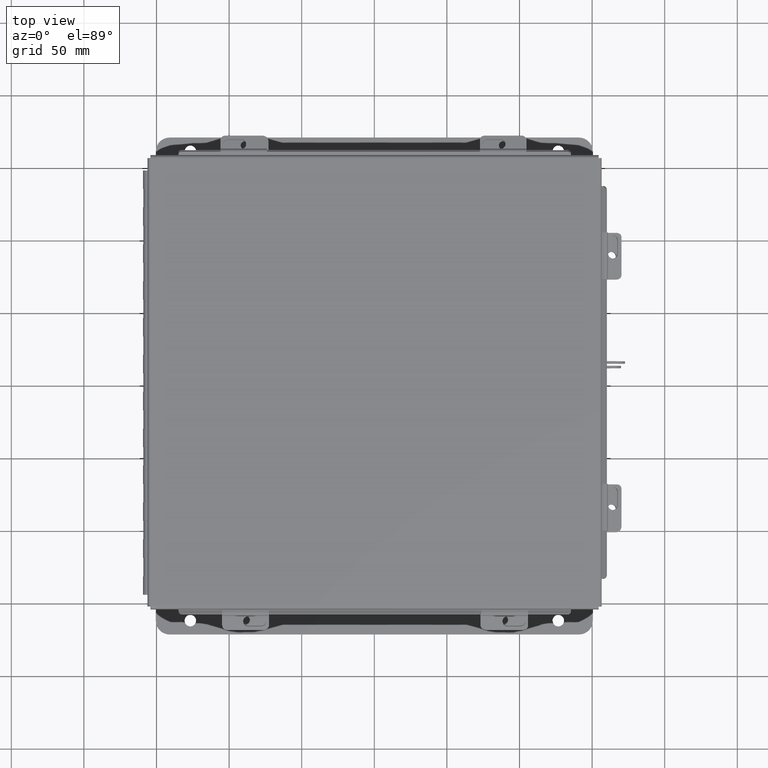
[diagram: clean part render]
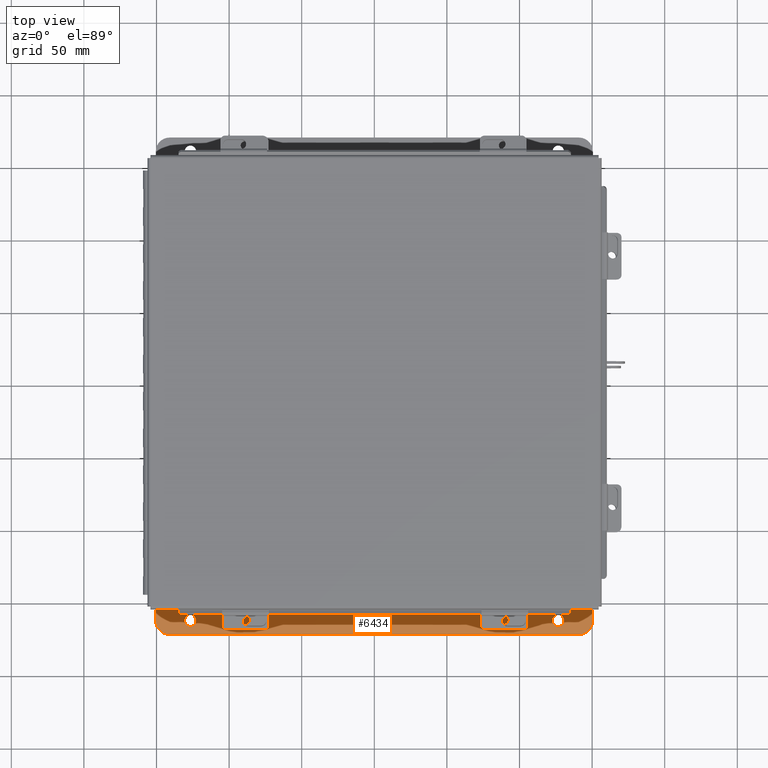
[diagram: same view with one face highlighted and labeled with its STEP entity id]
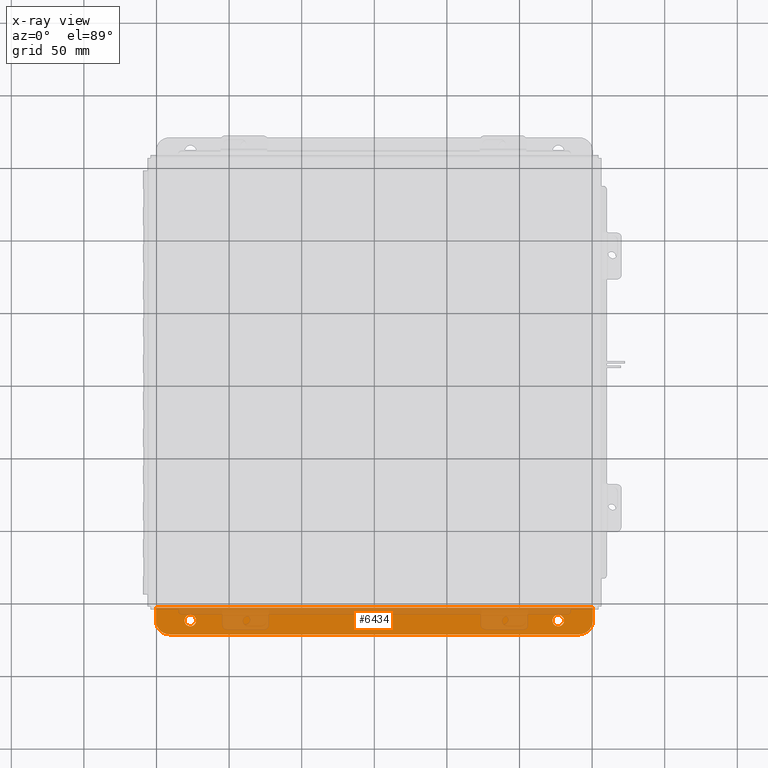
[diagram: x-ray of the same camera — body ghosted, the highlighted face saturated]
A machine part, top view. The second image highlights one B-rep face of the part: STEP entity #6434.
The next image is the same camera in x-ray: the body ghosted, the highlighted face saturated — about 37% of this face is hidden behind the body in this view.
In plain terms, the highlighted planar face has unit normal (0, -0, 1).
Its self-contained STEP definition (entity closure, byte-faithful):
#8 = DIRECTION ( 'NONE',  ( 0.0000000000000000000, -1.000000000000000000, 3.502369222646487400E-015 ) ) ;
#116 = VERTEX_POINT ( 'NONE', #11063 ) ;
#236 = EDGE_CURVE ( 'NONE', #1579, #8263, #1847, .T. ) ;
#613 = CARTESIAN_POINT ( 'NONE',  ( -4.987800000000000900, 0.5188000000000003700, -3.112300000000001600 ) ) ;
#637 = VECTOR ( 'NONE', #17325, 39.37007874015748100 ) ;
#679 = LINE ( 'NONE', #5888, #11071 ) ;
#774 = ORIENTED_EDGE ( 'NONE', *, *, #13367, .F. ) ;
#795 = AXIS2_PLACEMENT_3D ( 'NONE', #13032, #16999, #9091 ) ;
#910 = VERTEX_POINT ( 'NONE', #15757 ) ;
#1173 = ORIENTED_EDGE ( 'NONE', *, *, #14292, .T. ) ;
#1197 = DIRECTION ( 'NONE',  ( 0.0000000000000000000, -1.000000000000000000, 3.502369222646487400E-015 ) ) ;
#1274 = VERTEX_POINT ( 'NONE', #4073 ) ;
#1336 = DIRECTION ( 'NONE',  ( 0.0000000000000000000, -1.000000000000000000, 4.370956789862820400E-015 ) ) ;
#1386 = ORIENTED_EDGE ( 'NONE', *, *, #10084, .T. ) ;
#1541 = ORIENTED_EDGE ( 'NONE', *, *, #4611, .T. ) ;
#1579 = VERTEX_POINT ( 'NONE', #613 ) ;
#1847 = CIRCLE ( 'NONE', #795, 0.1560000000000001700 ) ;
#2075 = FACE_BOUND ( 'NONE', #16605, .T. ) ;
#2077 = EDGE_CURVE ( 'NONE', #6500, #910, #12177, .T. ) ;
#2341 = AXIS2_PLACEMENT_3D ( 'NONE', #11228, #3115, #12598 ) ;
#2342 = CARTESIAN_POINT ( 'NONE',  ( 5.550299999999999100, 0.3628000000000002300, -3.112300000000001200 ) ) ;
#3093 = DIRECTION ( 'NONE',  ( -0.0000000000000000000, -1.000000000000000000, 3.702694488566362300E-015 ) ) ;
#3115 = DIRECTION ( 'NONE',  ( 0.0000000000000000000, 3.702694488566362300E-015, 1.000000000000000000 ) ) ;
#3963 = CARTESIAN_POINT ( 'NONE',  ( 5.550299999999999100, 0.7378000000000002300, -3.112300000000003000 ) ) ;
#4073 = CARTESIAN_POINT ( 'NONE',  ( 5.925299999999999100, 0.3628000000000002300, -3.112300000000001200 ) ) ;
#4173 = CIRCLE ( 'NONE', #8554, 0.1560000000000001700 ) ;
#4214 = AXIS2_PLACEMENT_3D ( 'NONE', #2342, #9456, #1336 ) ;
#4517 = EDGE_CURVE ( 'NONE', #910, #15206, #11027, .T. ) ;
#4611 = EDGE_CURVE ( 'NONE', #9376, #116, #13346, .T. ) ;
#4906 = EDGE_CURVE ( 'NONE', #116, #9376, #5495, .T. ) ;
#4948 = VECTOR ( 'NONE', #8819, 39.37007874015748100 ) ;
#4979 = CARTESIAN_POINT ( 'NONE',  ( 5.925299999999999100, 0.01299999999999996600, -3.112299999999999800 ) ) ;
#5495 = CIRCLE ( 'NONE', #12990, 0.1560000000000001700 ) ;
#5888 = CARTESIAN_POINT ( 'NONE',  ( 5.925299999999999100, 0.7378000000000002300, -3.112300000000003000 ) ) ;
#5968 = ORIENTED_EDGE ( 'NONE', *, *, #236, .T. ) ;
#6050 = CIRCLE ( 'NONE', #4214, 0.3750000000000000600 ) ;
#6207 = CARTESIAN_POINT ( 'NONE',  ( 0.0000000000000000000, -1.083149218740318000E-014, -3.112299999999999800 ) ) ;
#6434 = ADVANCED_FACE ( 'NONE', ( #12893, #2075, #9293 ), #14323, .T. ) ;
#6500 = VERTEX_POINT ( 'NONE', #4979 ) ;
#7250 = VERTEX_POINT ( 'NONE', #3963 ) ;
#7337 = CARTESIAN_POINT ( 'NONE',  ( 4.987799999999998200, 0.3628000000000001800, -3.112300000000001200 ) ) ;
#7370 = ORIENTED_EDGE ( 'NONE', *, *, #10912, .F. ) ;
#7511 = LINE ( 'NONE', #11206, #10732 ) ;
#7553 = DIRECTION ( 'NONE',  ( 0.0000000000000000000, 3.702694488566362300E-015, 1.000000000000000000 ) ) ;
#7858 = AXIS2_PLACEMENT_3D ( 'NONE', #16223, #8085, #8 ) ;
#8065 = CARTESIAN_POINT ( 'NONE',  ( -4.987800000000000900, 0.2067999999999999800, -3.112300000000000700 ) ) ;
#8085 = DIRECTION ( 'NONE',  ( -0.0000000000000000000, -3.702694488566362300E-015, -1.000000000000000000 ) ) ;
#8210 = ORIENTED_EDGE ( 'NONE', *, *, #4517, .F. ) ;
#8263 = VERTEX_POINT ( 'NONE', #8065 ) ;
#8554 = AXIS2_PLACEMENT_3D ( 'NONE', #17411, #9310, #1197 ) ;
#8719 = DIRECTION ( 'NONE',  ( 0.0000000000000000000, -1.000000000000000000, 3.502369222646487400E-015 ) ) ;
#8819 = DIRECTION ( 'NONE',  ( -1.000000000000000000, 0.0000000000000000000, 0.0000000000000000000 ) ) ;
#8956 = ORIENTED_EDGE ( 'NONE', *, *, #2077, .F. ) ;
#8994 = CARTESIAN_POINT ( 'NONE',  ( 5.925299999999999100, 0.01300000000000010700, -3.112299999999999800 ) ) ;
#9091 = DIRECTION ( 'NONE',  ( 0.0000000000000000000, -1.000000000000000000, 3.502369222646487400E-015 ) ) ;
#9108 = CARTESIAN_POINT ( 'NONE',  ( -5.925300000000001800, 0.3628000000000002900, -3.112300000000001200 ) ) ;
#9219 = CARTESIAN_POINT ( 'NONE',  ( -5.925300000000001800, 0.7378000000000002300, -3.112300000000003000 ) ) ;
#9293 = FACE_OUTER_BOUND ( 'NONE', #10984, .T. ) ;
#9310 = DIRECTION ( 'NONE',  ( -0.0000000000000000000, -3.702694488566362300E-015, -1.000000000000000000 ) ) ;
#9376 = VERTEX_POINT ( 'NONE', #11850 ) ;
#9456 = DIRECTION ( 'NONE',  ( 0.0000000000000000000, 3.702694488566362300E-015, 1.000000000000000000 ) ) ;
#10084 = EDGE_CURVE ( 'NONE', #1274, #7250, #6050, .T. ) ;
#10637 = EDGE_CURVE ( 'NONE', #8263, #1579, #4173, .T. ) ;
#10732 = VECTOR ( 'NONE', #3093, 39.37007874015748100 ) ;
#10912 = EDGE_CURVE ( 'NONE', #1274, #6500, #7511, .T. ) ;
#10984 = EDGE_LOOP ( 'NONE', ( #774, #1173, #8210, #8956, #7370, #1386 ) ) ;
#11027 = LINE ( 'NONE', #9219, #637 ) ;
#11063 = CARTESIAN_POINT ( 'NONE',  ( 4.987799999999998200, 0.5188000000000003700, -3.112300000000001600 ) ) ;
#11071 = VECTOR ( 'NONE', #12658, 39.37007874015748100 ) ;
#11206 = CARTESIAN_POINT ( 'NONE',  ( 5.925299999999999100, 1.577762228432578300E-017, -3.112299999999999800 ) ) ;
#11228 = CARTESIAN_POINT ( 'NONE',  ( -5.550299999999999100, 0.3628000000000002900, -3.112300000000001200 ) ) ;
#11677 = ORIENTED_EDGE ( 'NONE', *, *, #10637, .T. ) ;
#11850 = CARTESIAN_POINT ( 'NONE',  ( 4.987799999999998200, 0.2067999999999999800, -3.112300000000000700 ) ) ;
#11925 = EDGE_LOOP ( 'NONE', ( #5968, #11677 ) ) ;
#12177 = LINE ( 'NONE', #8994, #4948 ) ;
#12322 = CIRCLE ( 'NONE', #2341, 0.3750000000000000600 ) ;
#12598 = DIRECTION ( 'NONE',  ( 0.0000000000000000000, -1.000000000000000000, 4.370956789862820400E-015 ) ) ;
#12658 = DIRECTION ( 'NONE',  ( 1.000000000000000000, -0.0000000000000000000, -0.0000000000000000000 ) ) ;
#12893 = FACE_BOUND ( 'NONE', #11925, .T. ) ;
#12990 = AXIS2_PLACEMENT_3D ( 'NONE', #7337, #16848, #8719 ) ;
#13032 = CARTESIAN_POINT ( 'NONE',  ( -4.987800000000000900, 0.3628000000000001800, -3.112300000000001200 ) ) ;
#13346 = CIRCLE ( 'NONE', #7858, 0.1560000000000001700 ) ;
#13367 = EDGE_CURVE ( 'NONE', #16561, #7250, #679, .T. ) ;
#14292 = EDGE_CURVE ( 'NONE', #16561, #15206, #12322, .T. ) ;
#14323 = PLANE ( 'NONE',  #16757 ) ;
#14519 = CARTESIAN_POINT ( 'NONE',  ( -5.550299999999999100, 0.7378000000000002300, -3.112300000000003000 ) ) ;
#15085 = ORIENTED_EDGE ( 'NONE', *, *, #4906, .T. ) ;
#15206 = VERTEX_POINT ( 'NONE', #9108 ) ;
#15757 = CARTESIAN_POINT ( 'NONE',  ( -5.925300000000000000, 0.01299999999999996600, -3.112299999999999800 ) ) ;
#16223 = CARTESIAN_POINT ( 'NONE',  ( 4.987799999999998200, 0.3628000000000001800, -3.112300000000001200 ) ) ;
#16561 = VERTEX_POINT ( 'NONE', #14519 ) ;
#16605 = EDGE_LOOP ( 'NONE', ( #15085, #1541 ) ) ;
#16757 = AXIS2_PLACEMENT_3D ( 'NONE', #6207, #7553, #17060 ) ;
#16848 = DIRECTION ( 'NONE',  ( -0.0000000000000000000, -3.702694488566362300E-015, -1.000000000000000000 ) ) ;
#16999 = DIRECTION ( 'NONE',  ( -0.0000000000000000000, -3.702694488566362300E-015, -1.000000000000000000 ) ) ;
#17060 = DIRECTION ( 'NONE',  ( 0.0000000000000000000, -1.000000000000000000, 3.702694488566362300E-015 ) ) ;
#17325 = DIRECTION ( 'NONE',  ( -0.0000000000000000000, 1.000000000000000000, -3.702694488566362300E-015 ) ) ;
#17411 = CARTESIAN_POINT ( 'NONE',  ( -4.987800000000000900, 0.3628000000000001800, -3.112300000000001200 ) ) ;